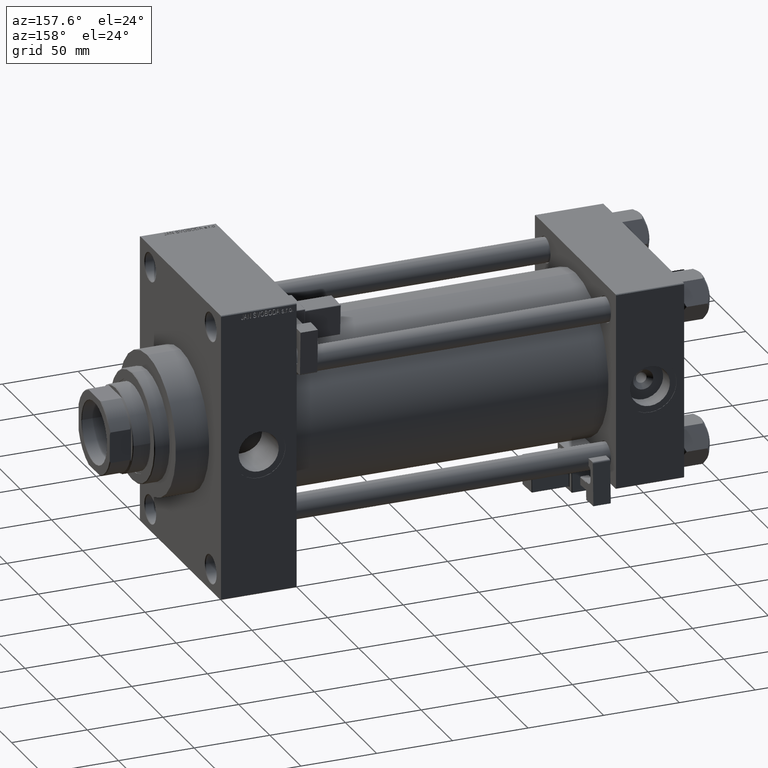
[diagram: clean part render]
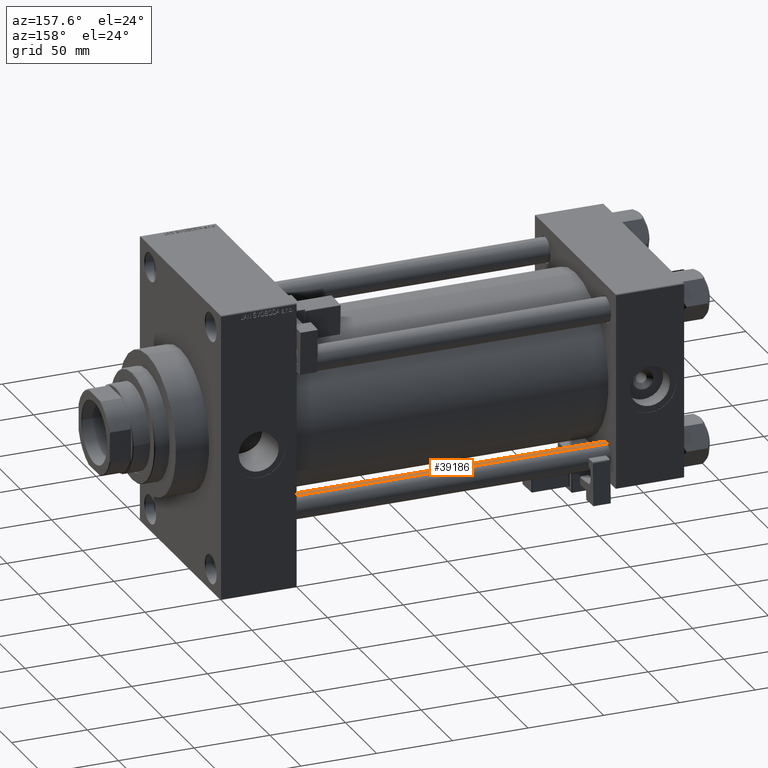
[diagram: same view with one face highlighted and labeled with its STEP entity id]
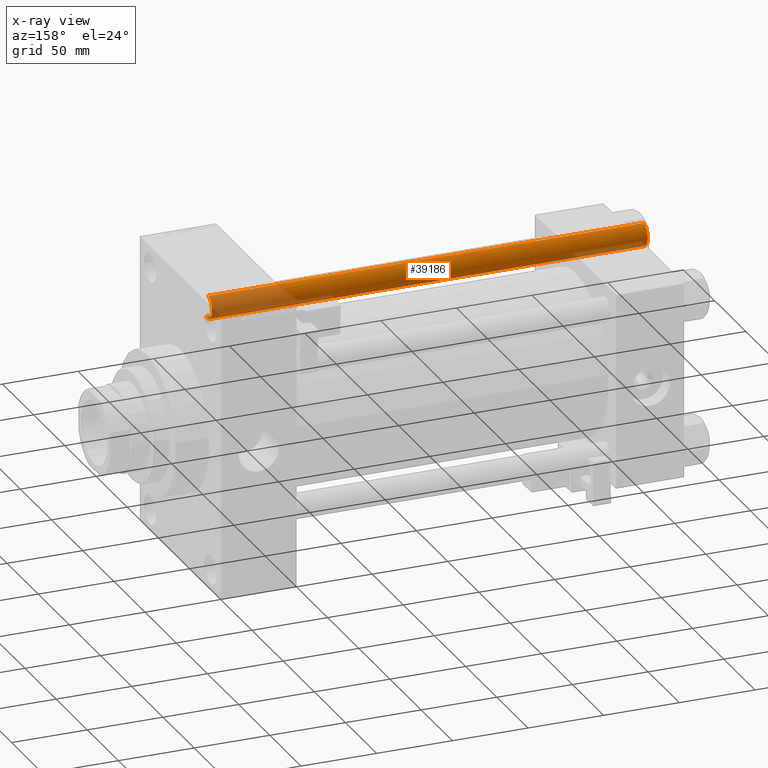
[diagram: x-ray of the same camera — body ghosted, the highlighted face saturated]
A machine part, auxiliary view. The second image highlights one B-rep face of the part: STEP entity #39186.
The next image is the same camera in x-ray: the body ghosted, the highlighted face saturated — about 23% of this face is hidden behind the body in this view.
In plain terms, the highlighted cylindrical surface (edge-blend (fillet) strip) has radius 8 mm, axis along (1, 0, 0).
Its self-contained STEP definition (entity closure, byte-faithful):
#3914 = VERTEX_POINT ( 'NONE', #21766 ) ;
#5282 = AXIS2_PLACEMENT_3D ( 'NONE', #44425, #29289, #25001 ) ;
#5297 = CARTESIAN_POINT ( 'NONE',  ( -8.000000000000000000, 0.000000000000000000, 289.0000000000000000 ) ) ;
#6486 = VERTEX_POINT ( 'NONE', #22145 ) ;
#8903 = ORIENTED_EDGE ( 'NONE', *, *, #36702, .F. ) ;
#9100 = DIRECTION ( 'NONE',  ( -0.000000000000000000, -0.000000000000000000, -1.000000000000000000 ) ) ;
#9718 = ORIENTED_EDGE ( 'NONE', *, *, #20295, .T. ) ;
#9896 = DIRECTION ( 'NONE',  ( 1.000000000000000000, 0.000000000000000000, 0.000000000000000000 ) ) ;
#11014 = VECTOR ( 'NONE', #47243, 1000.000000000000000 ) ;
#12655 = LINE ( 'NONE', #42728, #11014 ) ;
#13025 = ORIENTED_EDGE ( 'NONE', *, *, #34467, .T. ) ;
#16992 = VECTOR ( 'NONE', #9100, 1000.000000000000000 ) ;
#17879 = AXIS2_PLACEMENT_3D ( 'NONE', #36919, #48277, #9896 ) ;
#20295 = EDGE_CURVE ( 'NONE', #6486, #37263, #46749, .T. ) ;
#21766 = CARTESIAN_POINT ( 'NONE',  ( 8.000000000000000000, 9.797174393178825657E-16, 288.5000000000000000 ) ) ;
#22145 = CARTESIAN_POINT ( 'NONE',  ( -8.000000000000000000, 0.000000000000000000, 288.5000000000000000 ) ) ;
#22680 = EDGE_CURVE ( 'NONE', #37263, #30196, #24367, .T. ) ;
#24367 = CIRCLE ( 'NONE', #17879, 8.000000000000000000 ) ;
#25001 = DIRECTION ( 'NONE',  ( 1.000000000000000000, 0.000000000000000000, 0.000000000000000000 ) ) ;
#27086 = AXIS2_PLACEMENT_3D ( 'NONE', #38635, #46941, #27269 ) ;
#27269 = DIRECTION ( 'NONE',  ( -1.000000000000000000, 0.000000000000000000, 0.000000000000000000 ) ) ;
#29289 = DIRECTION ( 'NONE',  ( 0.000000000000000000, 0.000000000000000000, -1.000000000000000000 ) ) ;
#30196 = VERTEX_POINT ( 'NONE', #41294 ) ;
#34467 = EDGE_CURVE ( 'NONE', #3914, #6486, #44016, .T. ) ;
#34588 = FACE_OUTER_BOUND ( 'NONE', #44912, .T. ) ;
#36702 = EDGE_CURVE ( 'NONE', #3914, #30196, #12655, .T. ) ;
#36919 = CARTESIAN_POINT ( 'NONE',  ( 0.000000000000000000, 0.000000000000000000, 0.5000000000000004441 ) ) ;
#37263 = VERTEX_POINT ( 'NONE', #38830 ) ;
#38192 = ORIENTED_EDGE ( 'NONE', *, *, #22680, .T. ) ;
#38635 = CARTESIAN_POINT ( 'NONE',  ( 0.000000000000000000, 0.000000000000000000, 289.0000000000000000 ) ) ;
#38830 = CARTESIAN_POINT ( 'NONE',  ( -8.000000000000000000, 0.000000000000000000, 0.5000000000000004441 ) ) ;
#39186 = ADVANCED_FACE ( 'NONE', ( #34588 ), #46693, .T. ) ;
#41294 = CARTESIAN_POINT ( 'NONE',  ( 8.000000000000000000, 9.797174393178825657E-16, 0.5000000000000004441 ) ) ;
#42728 = CARTESIAN_POINT ( 'NONE',  ( 8.000000000000000000, 9.797174393178825657E-16, 289.0000000000000000 ) ) ;
#44016 = CIRCLE ( 'NONE', #5282, 8.000000000000000000 ) ;
#44425 = CARTESIAN_POINT ( 'NONE',  ( 0.000000000000000000, 0.000000000000000000, 288.5000000000000000 ) ) ;
#44912 = EDGE_LOOP ( 'NONE', ( #8903, #13025, #9718, #38192 ) ) ;
#46693 = CYLINDRICAL_SURFACE ( 'NONE', #27086, 8.000000000000000000 ) ;
#46749 = LINE ( 'NONE', #5297, #16992 ) ;
#46941 = DIRECTION ( 'NONE',  ( -0.000000000000000000, -0.000000000000000000, -1.000000000000000000 ) ) ;
#47243 = DIRECTION ( 'NONE',  ( -0.000000000000000000, -0.000000000000000000, -1.000000000000000000 ) ) ;
#48277 = DIRECTION ( 'NONE',  ( -0.000000000000000000, -0.000000000000000000, 1.000000000000000000 ) ) ;